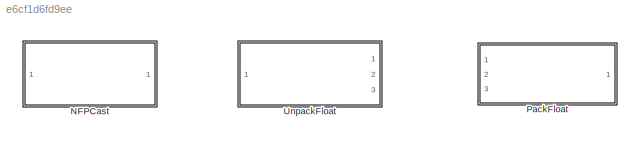
MODEL slx_e6cf1d6fd9ee
KIND library
CONFIG AbsTol = auto
CONFIG EnableMultiTasking = off
CONFIG FixedStep = auto
CONFIG MaxStep = auto
CONFIG MinStep = auto
CONFIG RelTol = 1e-3
CONFIG SampleTimeConstraint = Unconstrained
CONFIG Solver = VariableStepAuto
CONFIG SolverName = VariableStepAuto
CONFIG StartTime = 0.0
CONFIG StopTime = 10.0
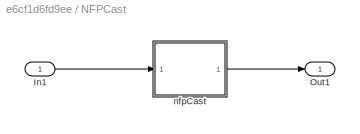
BLOCK [SubSystem] NFPCast
  Ports = [1, 1]
  RequestExecContextInheritance = off
BLOCK [Inport] NFPCast/In1
  IconDisplay = Port number
BLOCK [Outport] NFPCast/Out1
  IconDisplay = Port number
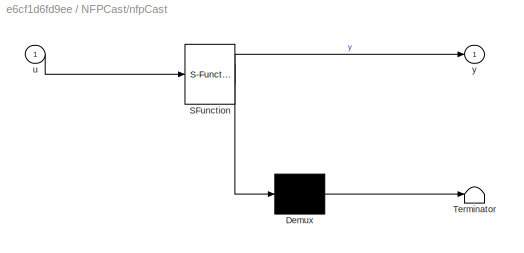
BLOCK [SubSystem] NFPCast/nfpCast
  ErrorFcn = Stateflow.Translate.translate
  PermitHierarchicalResolution = ExplicitOnly
  Ports = [1, 1]
  RequestExecContextInheritance = off
  SFBlockType = MATLAB Function
  TreatAsAtomicUnit = on
BLOCK [Demux] NFPCast/nfpCast/ Demux 
  Outputs = 1
  Ports = [1, 1]
BLOCK [S-Function] NFPCast/nfpCast/ SFunction 
  EnableBusSupport = off
  FunctionName = sf_sfun
  PortCounts = [1 2]
  Ports = [1, 2]
  SFcnIsStateOwnerBlock = off
  SFunctionDeploymentMode = off
  Tag = Stateflow S-Function hdlcoderNFPCast 1
BLOCK [Terminator] NFPCast/nfpCast/ Terminator 
BLOCK [Inport] NFPCast/nfpCast/u
  IconDisplay = Port number
BLOCK [Outport] NFPCast/nfpCast/y
  IconDisplay = Port number
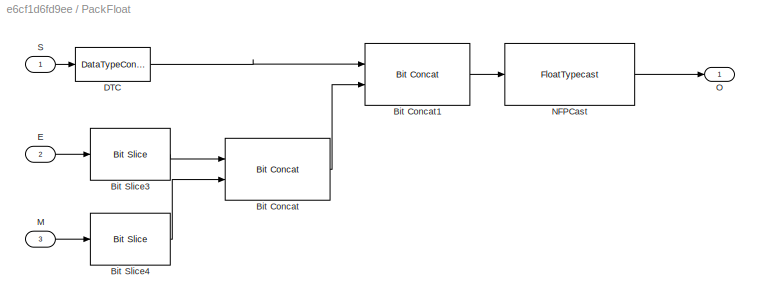
BLOCK [SubSystem] PackFloat
  Ports = [3, 1]
  RequestExecContextInheritance = off
BLOCK [Reference] PackFloat/Bit Concat  REF=hdlsllib/Logic and Bit
Operations/Bit Concat
  Ports = [2, 1]
  SourceBlock = hdlsllib/Logic and Bit\nOperations/Bit Concat
  SourceProductBaseCode = SL
  SourceProductName = Simulink
  SourceType = Bit Concat
BLOCK [Reference] PackFloat/Bit Concat1  REF=hdlsllib/Logic and Bit
Operations/Bit Concat
  Ports = [2, 1]
  SourceBlock = hdlsllib/Logic and Bit\nOperations/Bit Concat
  SourceProductBaseCode = SL
  SourceProductName = Simulink
  SourceType = Bit Concat
BLOCK [Reference] PackFloat/Bit Slice3  REF=hdlsllib/Logic and Bit
Operations/Bit Slice
  Ports = [1, 1]
  SourceBlock = hdlsllib/Logic and Bit\nOperations/Bit Slice
  SourceProductBaseCode = SL
  SourceProductName = Simulink
  SourceType = Bit Slice
BLOCK [Reference] PackFloat/Bit Slice4  REF=hdlsllib/Logic and Bit
Operations/Bit Slice
  Ports = [1, 1]
  SourceBlock = hdlsllib/Logic and Bit\nOperations/Bit Slice
  SourceProductBaseCode = SL
  SourceProductName = Simulink
  SourceType = Bit Slice
BLOCK [DataTypeConversion] PackFloat/DTC
  OutDataTypeStr = boolean
  RndMeth = Floor
  SaturateOnIntegerOverflow = off
BLOCK [Inport] PackFloat/E
  IconDisplay = Port number
  Port = 2
BLOCK [Inport] PackFloat/M
  IconDisplay = Port number
  Port = 3
BLOCK [FloatTypecast] PackFloat/NFPCast
BLOCK [Outport] PackFloat/O
  IconDisplay = Port number
BLOCK [Inport] PackFloat/S
  IconDisplay = Port number
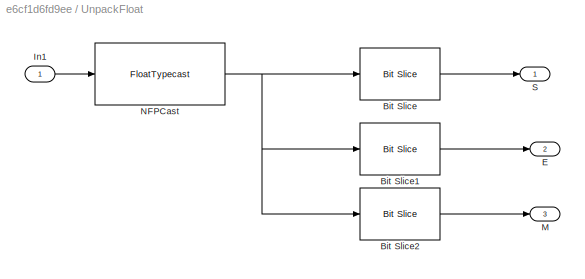
BLOCK [SubSystem] UnpackFloat
  Ports = [1, 3]
  RequestExecContextInheritance = off
BLOCK [Reference] UnpackFloat/Bit Slice  REF=hdlsllib/Logic and Bit
Operations/Bit Slice
  Ports = [1, 1]
  SourceBlock = hdlsllib/Logic and Bit\nOperations/Bit Slice
  SourceProductBaseCode = SL
  SourceProductName = Simulink
  SourceType = Bit Slice
BLOCK [Reference] UnpackFloat/Bit Slice1  REF=hdlsllib/Logic and Bit
Operations/Bit Slice
  Ports = [1, 1]
  SourceBlock = hdlsllib/Logic and Bit\nOperations/Bit Slice
  SourceProductBaseCode = SL
  SourceProductName = Simulink
  SourceType = Bit Slice
BLOCK [Reference] UnpackFloat/Bit Slice2  REF=hdlsllib/Logic and Bit
Operations/Bit Slice
  Ports = [1, 1]
  SourceBlock = hdlsllib/Logic and Bit\nOperations/Bit Slice
  SourceProductBaseCode = SL
  SourceProductName = Simulink
  SourceType = Bit Slice
BLOCK [Outport] UnpackFloat/E
  IconDisplay = Port number
  Port = 2
BLOCK [Inport] UnpackFloat/In1
  IconDisplay = Port number
BLOCK [Outport] UnpackFloat/M
  IconDisplay = Port number
  Port = 3
BLOCK [FloatTypecast] UnpackFloat/NFPCast
BLOCK [Outport] UnpackFloat/S
  IconDisplay = Port number
LINE NFPCast/In1:1 -> NFPCast/nfpCast:1
LINE NFPCast/nfpCast:1 -> NFPCast/Out1:1
LINE PackFloat/Bit Concat1:1 -> PackFloat/NFPCast:1
LINE PackFloat/Bit Concat:1 -> PackFloat/Bit Concat1:2
LINE PackFloat/Bit Slice3:1 -> PackFloat/Bit Concat:1
LINE PackFloat/Bit Slice4:1 -> PackFloat/Bit Concat:2
LINE PackFloat/DTC:1 -> PackFloat/Bit Concat1:1
LINE PackFloat/E:1 -> PackFloat/Bit Slice3:1
LINE PackFloat/M:1 -> PackFloat/Bit Slice4:1
LINE PackFloat/NFPCast:1 -> PackFloat/O:1
LINE PackFloat/S:1 -> PackFloat/DTC:1
LINE UnpackFloat/Bit Slice1:1 -> UnpackFloat/E:1
LINE UnpackFloat/Bit Slice2:1 -> UnpackFloat/M:1
LINE UnpackFloat/Bit Slice:1 -> UnpackFloat/S:1
LINE UnpackFloat/In1:1 -> UnpackFloat/NFPCast:1
NET UnpackFloat/NFPCast:1 -> UnpackFloat/Bit Slice1:1, UnpackFloat/Bit Slice2:1, UnpackFloat/Bit Slice:1
note: NET lines group one-source signal fan-out (src -> all destinations, sorted); 1:1 wires keep LINE
CHART NFPCast/nfpCast states=1 transitions=1
  STATE_LABEL 'eML_blk_kernel()'
  STATE_LABEL "SCRIPT:\nfunction y = nfpCast(u)\ncoder.extrinsic('sprintf');\nif isa(u, 'single')\n    y = typecast(single(u), 'uint32');\nelseif isa(u, 'double')\n    fxp = fi(0, 0, 64, 0);\n    interm = typecast(double(u), 'uint64');\n    y = cast(interm, 'like', fxp);\nelseif isa(u, 'uint32')\n    y = typecast(u, 'single');\nelseif isa(u, 'uint64')\n    y = typecast(u, 'double');\nelseif isa(u, 'embedded.fi')\n    if (u.Wo...<+699ch>"
